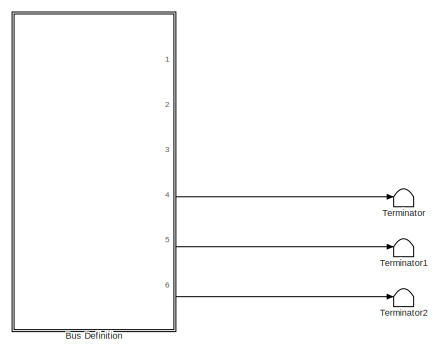
[diagram: root canvas - part 1/2, top left region]
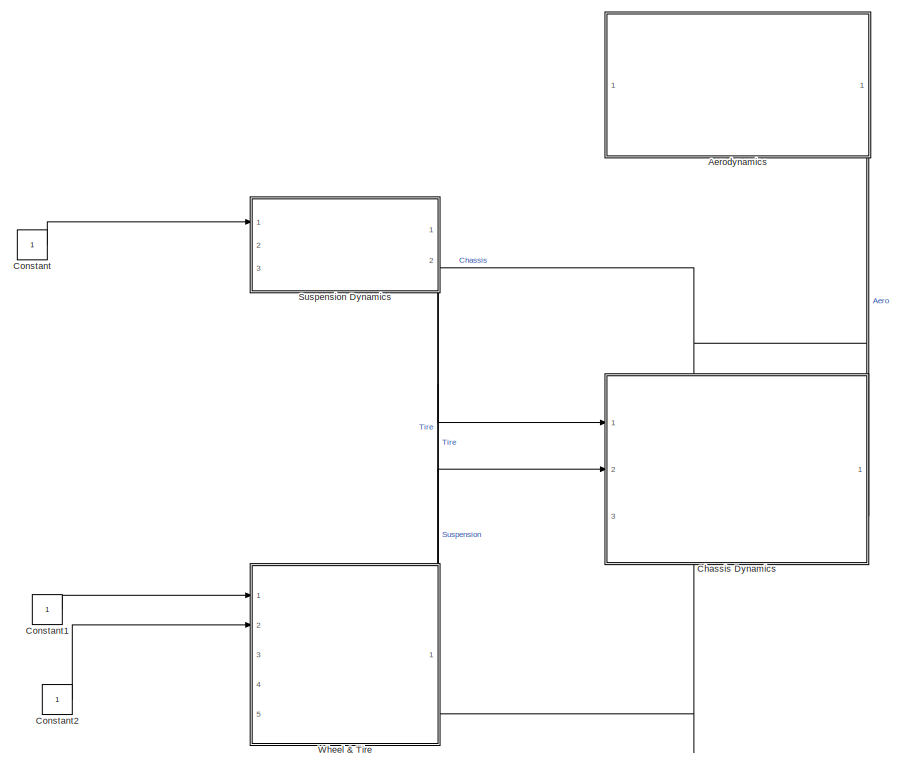
[diagram: root canvas - part 2/2, bottom right region]
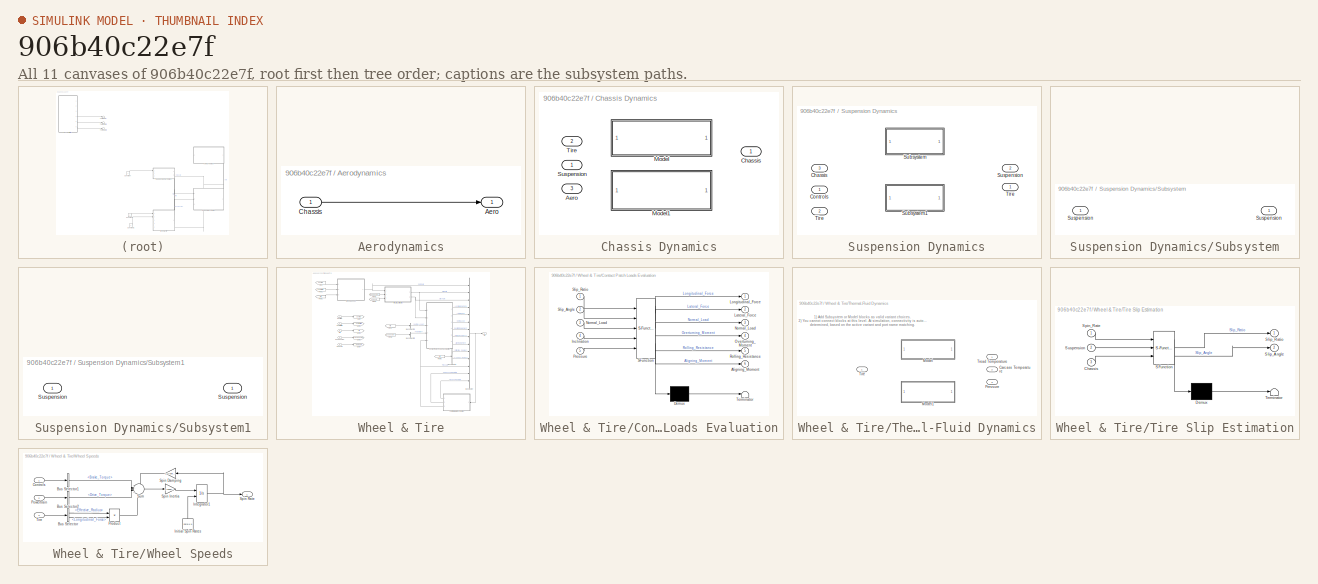
[diagram: thumbnail index - all 11 canvases of the model, root first then tree order]
MODEL slx_906b40c22e7f
KIND model
CONFIG AbsTol = auto
CONFIG EnableMultiTasking = off
CONFIG FixedStep = auto
CONFIG MaxStep = auto
CONFIG MinStep = auto
CONFIG RelTol = 1e-3
CONFIG SampleTimeConstraint = Unconstrained
CONFIG SolverName = VariableStepAuto
CONFIG StartTime = 0.0
CONFIG StopTime = 10.0
BLOCK [SubSystem] Aerodynamics
  NameLocation = top
  PortSchema = {"entries":[{"content":{"sides":[{"content":{"connectorIds":[]},"type":"ConnectorPlacement.EquallySpacedRectSide","uuid":"ed036519-b865-4931-9ce8-225bd8cb43a6"},{"content":{"connectorIds":[],"side":"RIGHT"},"type":"ConnectorPlacement.EquallySpacedRectSide","uuid":"9b23d089-d24c-4331-9743-5906988b211f"},{"content":{"connectorIds":[],"side":"TOP"},"type":"ConnectorPlacement.EquallySpacedRectSide","u...<+529ch>
  Ports = [1, 1]
  RequestExecContextInheritance = off
BLOCK [Outport] Aerodynamics/Aero
BLOCK [Inport] Aerodynamics/Chassis
BLOCK [ModelReference] Bus Definition
  ModelNameDialog = VehicleModelBusTest.slx
  ModelReferenceVersion = 1.33
  Ports = [0, 6]
BLOCK [SubSystem] Chassis Dynamics
  PortSchema = {"entries":[{"content":{"sides":[{"content":{"connectorIds":["In1","In2"]},"type":"ConnectorPlacement.EquallySpacedRectSide","uuid":"401103c9-df33-4d23-92c4-dccc68bb9aee"},{"content":{"connectorIds":[],"side":"RIGHT"},"type":"ConnectorPlacement.EquallySpacedRectSide","uuid":"29401883-02eb-405e-b55e-d775bdf22a7d"},{"content":{"connectorIds":["Out1","In3"],"side":"TOP"},"type":"ConnectorPlacement.Eq...<+396ch>
  Ports = [3, 1]
  RequestExecContextInheritance = off
  Variant = on
BLOCK [Inport] Chassis Dynamics/Aero
  Port = 3
BLOCK [Outport] Chassis Dynamics/Chassis
BLOCK [ModelReference] Chassis Dynamics/Model
  DisableCoverage = on
  Ports = []
  VariantControl = Variant
BLOCK [ModelReference] Chassis Dynamics/Model1
  Ports = []
  VariantControl = Variant1
BLOCK [Inport] Chassis Dynamics/Suspension
BLOCK [Inport] Chassis Dynamics/Tire
  Port = 2
BLOCK [Constant] Constant
BLOCK [Constant] Constant1
BLOCK [Constant] Constant2
BLOCK [SubSystem] Suspension Dynamics
  NameLocation = top
  PortSchema = {"entries":[{"content":{"sides":[{"content":{"connectorIds":["In1"]},"type":"ConnectorPlacement.EquallySpacedRectSide","uuid":"ac39668b-b0ed-403b-8381-303be083bc77"},{"content":{"connectorIds":["In3"],"side":"RIGHT"},"type":"ConnectorPlacement.EquallySpacedRectSide","uuid":"f6b1d0bd-c35b-44a1-b6f6-628e84c5d84e"},{"content":{"connectorIds":[],"side":"TOP"},"type":"ConnectorPlacement.EquallySpacedRe...<+546ch>
  Ports = [3, 2]
  RequestExecContextInheritance = off
  Variant = on
BLOCK [Inport] Suspension Dynamics/Chassis
  Port = 3
BLOCK [Inport] Suspension Dynamics/Controls
BLOCK [SubSystem] Suspension Dynamics/Subsystem
  Ports = [1, 1]
  RequestExecContextInheritance = off
  VariantControl = Choice_1
BLOCK [Inport] Suspension Dynamics/Subsystem/Suspension
BLOCK [Outport] Suspension Dynamics/Subsystem/Suspension 
BLOCK [SubSystem] Suspension Dynamics/Subsystem1
  Ports = [1, 1]
  RequestExecContextInheritance = off
  VariantControl = Choice_2
BLOCK [Inport] Suspension Dynamics/Subsystem1/Suspension
BLOCK [Outport] Suspension Dynamics/Subsystem1/Suspension 
BLOCK [Outport] Suspension Dynamics/Suspension 
  Port = 2
BLOCK [Inport] Suspension Dynamics/Tire
  Port = 2
BLOCK [Outport] Suspension Dynamics/Tire 
BLOCK [Terminator] Terminator
BLOCK [Terminator] Terminator1
BLOCK [Terminator] Terminator2
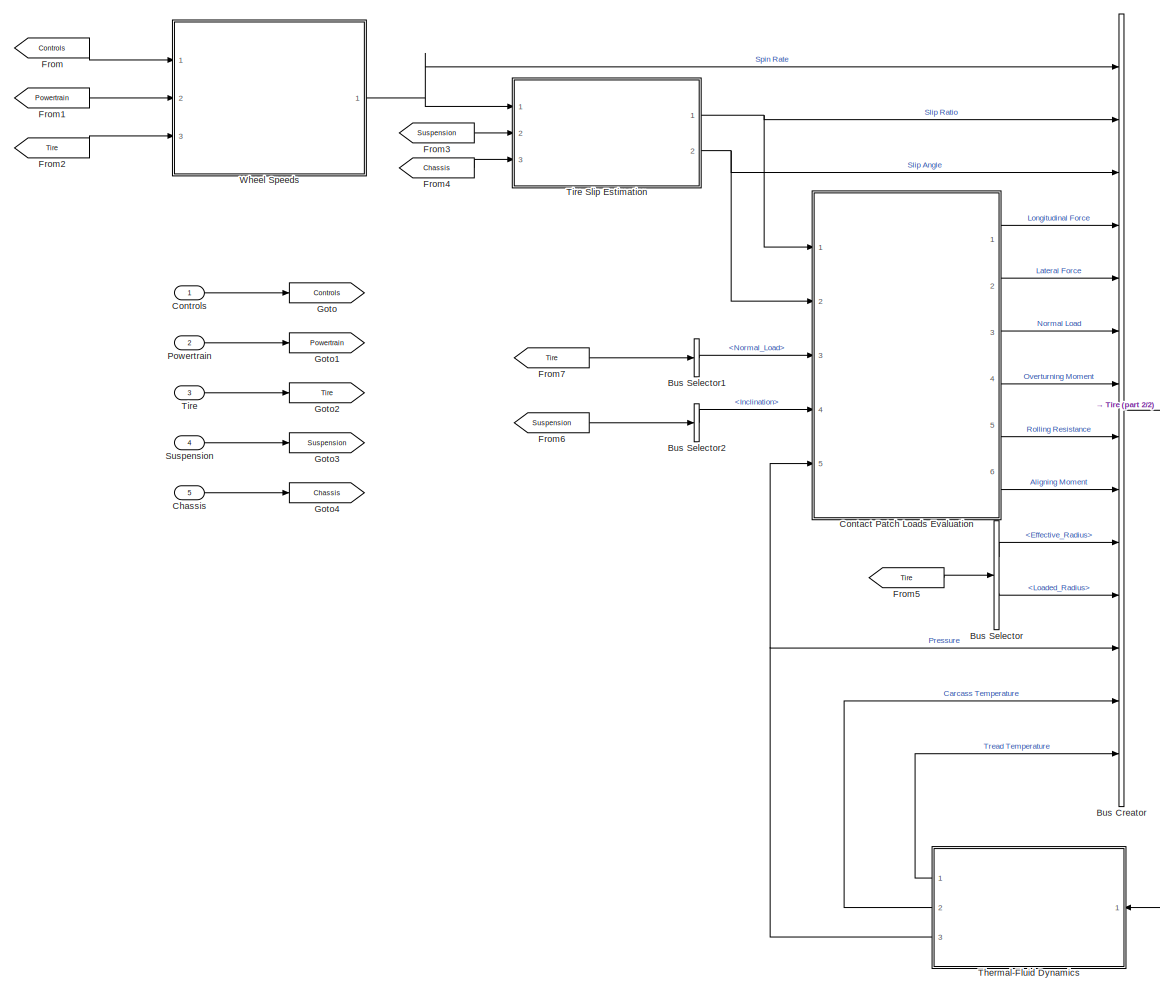
[diagram: Wheel & Tire - part 1/2, most of the canvas]
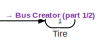
[diagram: Wheel & Tire - part 2/2, middle right region]
BLOCK [SubSystem] Wheel & Tire
  PortSchema = {"entries":[{"content":{"sides":[{"content":{"connectorIds":["In1","In2"]},"type":"ConnectorPlacement.EquallySpacedRectSide","uuid":"ac39668b-b0ed-403b-8381-303be083bc77"},{"content":{"connectorIds":["In5"],"side":"RIGHT"},"type":"ConnectorPlacement.EquallySpacedRectSide","uuid":"f6b1d0bd-c35b-44a1-b6f6-628e84c5d84e"},{"content":{"connectorIds":["In3","Out1","In4"],"side":"TOP"},"type":"ConnectorP...<+407ch>
  Ports = [5, 1]
  RequestExecContextInheritance = off
BLOCK [BusCreator] Wheel & Tire/Bus Creator
  DisplayOption = bar
  InheritFromInputs = on
  Inputs = 14
  Ports = [14, 1]
BLOCK [BusSelector] Wheel & Tire/Bus Selector
  OutputSignals = Effective_Radius,Loaded_Radius
  Ports = [1, 2]
BLOCK [BusSelector] Wheel & Tire/Bus Selector1
  OutputSignals = Normal_Load
  Ports = [1, 1]
BLOCK [BusSelector] Wheel & Tire/Bus Selector2
  OutputSignals = Inclination
  Ports = [1, 1]
BLOCK [Inport] Wheel & Tire/Chassis
  OutDataTypeStr = Bus: Chassis
  Port = 5
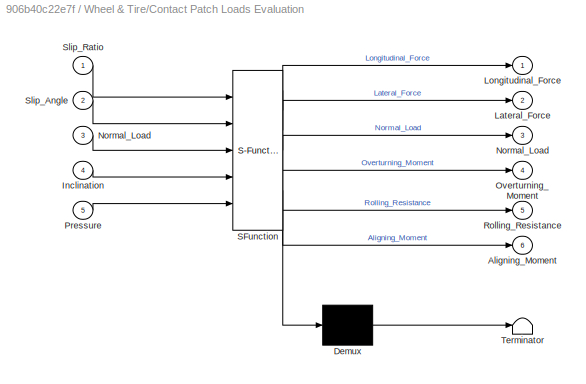
BLOCK [SubSystem] Wheel & Tire/Contact Patch Loads Evaluation
  ErrorFcn = Stateflow.Translate.translate
  PermitHierarchicalResolution = ExplicitOnly
  Ports = [5, 6]
  RequestExecContextInheritance = off
  SFBlockType = MATLAB Function
  TreatAsAtomicUnit = on
BLOCK [Demux] Wheel & Tire/Contact Patch Loads Evaluation/ Demux 
  Outputs = 1
  Ports = [1, 1]
BLOCK [S-Function] Wheel & Tire/Contact Patch Loads Evaluation/ SFunction 
  EnableBusSupport = off
  FunctionName = sf_sfun
  Parameters = Vehicle
  PortCounts = [5 7]
  Ports = [5, 7]
  SFcnIsStateOwnerBlock = off
  SFunctionDeploymentMode = off
  Tag = Stateflow S-Function 1
BLOCK [Terminator] Wheel & Tire/Contact Patch Loads Evaluation/ Terminator 
BLOCK [Outport] Wheel & Tire/Contact Patch Loads Evaluation/Aligning_Moment
  Port = 6
BLOCK [Inport] Wheel & Tire/Contact Patch Loads Evaluation/Inclination
  Port = 4
BLOCK [Outport] Wheel & Tire/Contact Patch Loads Evaluation/Lateral_Force
  Port = 2
BLOCK [Outport] Wheel & Tire/Contact Patch Loads Evaluation/Longitudinal_Force
BLOCK [Outport] Wheel & Tire/Contact Patch Loads Evaluation/Normal_Load
  Port = 3
BLOCK [Inport] Wheel & Tire/Contact Patch Loads Evaluation/Normal_Load 
  Port = 3
BLOCK [Outport] Wheel & Tire/Contact Patch Loads Evaluation/Overturning_Moment
  Port = 4
BLOCK [Inport] Wheel & Tire/Contact Patch Loads Evaluation/Pressure
  Port = 5
BLOCK [Outport] Wheel & Tire/Contact Patch Loads Evaluation/Rolling_Resistance
  Port = 5
BLOCK [Inport] Wheel & Tire/Contact Patch Loads Evaluation/Slip_Angle
  Port = 2
BLOCK [Inport] Wheel & Tire/Contact Patch Loads Evaluation/Slip_Ratio
BLOCK [Inport] Wheel & Tire/Controls
  OutDataTypeStr = Bus: Controls
BLOCK [From] Wheel & Tire/From
  GotoTag = Controls
BLOCK [From] Wheel & Tire/From1
  GotoTag = Powertrain
BLOCK [From] Wheel & Tire/From2
  GotoTag = Tire
BLOCK [From] Wheel & Tire/From3
  GotoTag = Suspension
BLOCK [From] Wheel & Tire/From4
  GotoTag = Chassis
BLOCK [From] Wheel & Tire/From5
  GotoTag = Tire
BLOCK [From] Wheel & Tire/From6
  GotoTag = Suspension
BLOCK [From] Wheel & Tire/From7
  GotoTag = Tire
BLOCK [Goto] Wheel & Tire/Goto
  GotoTag = Controls
BLOCK [Goto] Wheel & Tire/Goto1
  GotoTag = Powertrain
BLOCK [Goto] Wheel & Tire/Goto2
  GotoTag = Tire
BLOCK [Goto] Wheel & Tire/Goto3
  GotoTag = Suspension
BLOCK [Goto] Wheel & Tire/Goto4
  GotoTag = Chassis
BLOCK [Inport] Wheel & Tire/Powertrain
  OutDataTypeStr = Bus: Powertrain
  Port = 2
BLOCK [Inport] Wheel & Tire/Suspension
  OutDataTypeStr = Bus: Suspension
  Port = 4
BLOCK [SubSystem] Wheel & Tire/Thermal-Fluid Dynamics
  Ports = [1, 3]
  RequestExecContextInheritance = off
  Variant = on
BLOCK [Outport] Wheel & Tire/Thermal-Fluid Dynamics/Carcass Temperature
  Port = 2
BLOCK [ModelReference] Wheel & Tire/Thermal-Fluid Dynamics/Model
  DisableCoverage = on
  Ports = []
  VariantControl = Variant
BLOCK [ModelReference] Wheel & Tire/Thermal-Fluid Dynamics/Model1
  Ports = []
  VariantControl = Variant1
BLOCK [Outport] Wheel & Tire/Thermal-Fluid Dynamics/Pressure
  Port = 3
BLOCK [Inport] Wheel & Tire/Thermal-Fluid Dynamics/Tire
BLOCK [Outport] Wheel & Tire/Thermal-Fluid Dynamics/Tread Temperature
BLOCK [Inport] Wheel & Tire/Tire
  OutDataTypeStr = Bus: Tire
  Port = 3
BLOCK [Outport] Wheel & Tire/Tire 
  OutDataTypeStr = Bus: Tire
BLOCK [SubSystem] Wheel & Tire/Tire Slip Estimation
  ErrorFcn = Stateflow.Translate.translate
  PermitHierarchicalResolution = ExplicitOnly
  Ports = [3, 2]
  RequestExecContextInheritance = off
  SFBlockType = MATLAB Function
  TreatAsAtomicUnit = on
BLOCK [Demux] Wheel & Tire/Tire Slip Estimation/ Demux 
  Outputs = 1
  Ports = [1, 1]
BLOCK [S-Function] Wheel & Tire/Tire Slip Estimation/ SFunction 
  EnableBusSupport = off
  FunctionName = sf_sfun
  Parameters = Vehicle
  PortCounts = [3 3]
  Ports = [3, 3]
  SFcnIsStateOwnerBlock = off
  SFunctionDeploymentMode = off
  Tag = Stateflow S-Function 14
BLOCK [Terminator] Wheel & Tire/Tire Slip Estimation/ Terminator 
BLOCK [Inport] Wheel & Tire/Tire Slip Estimation/Chassis
  Port = 3
BLOCK [Outport] Wheel & Tire/Tire Slip Estimation/Slip_Angle
  Port = 2
BLOCK [Outport] Wheel & Tire/Tire Slip Estimation/Slip_Ratio
BLOCK [Inport] Wheel & Tire/Tire Slip Estimation/Spin_Rate
BLOCK [Inport] Wheel & Tire/Tire Slip Estimation/Suspension
  Port = 2
BLOCK [SubSystem] Wheel & Tire/Wheel Speeds
  Ports = [3, 1]
  RequestExecContextInheritance = off
BLOCK [BusSelector] Wheel & Tire/Wheel Speeds/Bus Selector
  OutputSignals = Effective_Radius,Longitudinal_Force
  Ports = [1, 2]
BLOCK [BusSelector] Wheel & Tire/Wheel Speeds/Bus Selector1
  OutputSignals = Brake_Torque
  Ports = [1, 1]
BLOCK [BusSelector] Wheel & Tire/Wheel Speeds/Bus Selector2
  OutputSignals = Drive_Torque
  Ports = [1, 1]
BLOCK [Inport] Wheel & Tire/Wheel Speeds/Controls
BLOCK [Constant] Wheel & Tire/Wheel Speeds/Initial Spin Rates
  NameLocation = right
  Value = zero(4,1)
BLOCK [Integrator] Wheel & Tire/Wheel Speeds/Integrator1
  InitialConditionSource = external
  NameLocation = top
  Ports = [2, 1]
BLOCK [Inport] Wheel & Tire/Wheel Speeds/Powertrain
  Port = 2
BLOCK [Product] Wheel & Tire/Wheel Speeds/Product
  Ports = [2, 1]
BLOCK [Gain] Wheel & Tire/Wheel Speeds/Spin Damping
  Gain = 1./Vehicle.Tire.Damping
  NameLocation = top
BLOCK [Gain] Wheel & Tire/Wheel Speeds/Spin Inertia
  Gain = 1./squeeze(Vehicle.Tire.Inertia(:,2,2))
BLOCK [Outport] Wheel & Tire/Wheel Speeds/Spin Rate
BLOCK [Sum] Wheel & Tire/Wheel Speeds/Sum
  Inputs = --||+-
  Ports = [4, 1]
BLOCK [Inport] Wheel & Tire/Wheel Speeds/Tire
  Port = 3
ANNOTATION Wheel & Tire/Thermal-Fluid Dynamics: 1) Add Subsystem or Model blocks as valid variant choices. 2) You cannot connect blocks at this level. At simulation, connectivity is automatically determined, based on the active variant and port name matching.
LINE Aerodynamics/Chassis:1 -> Aerodynamics/Aero:1
LINE Aerodynamics:1 -> Chassis Dynamics:3
LINE Bus Definition:4 -> Terminator:1
LINE Bus Definition:5 -> Terminator1:1
LINE Bus Definition:6 -> Terminator2:1
NET Chassis Dynamics:1 -> Aerodynamics:1, Suspension Dynamics:3, Wheel & Tire:5
LINE Constant1:1 -> Wheel & Tire:1
LINE Constant2:1 -> Wheel & Tire:2
LINE Constant:1 -> Suspension Dynamics:1
LINE Suspension Dynamics:1 -> Wheel & Tire:3
NET Suspension Dynamics:2 -> Chassis Dynamics:1, Wheel & Tire:4
NET Wheel & Tire/Bus Creator:1 -> Wheel & Tire/Thermal-Fluid Dynamics:1, Wheel & Tire/Tire :1
LINE Wheel & Tire/Bus Selector1:1 -> Wheel & Tire/Contact Patch Loads Evaluation:3
LINE Wheel & Tire/Bus Selector2:1 -> Wheel & Tire/Contact Patch Loads Evaluation:4
LINE Wheel & Tire/Bus Selector:1 -> Wheel & Tire/Bus Creator:10
LINE Wheel & Tire/Bus Selector:2 -> Wheel & Tire/Bus Creator:11
LINE Wheel & Tire/Chassis:1 -> Wheel & Tire/Goto4:1
LINE Wheel & Tire/Contact Patch Loads Evaluation:1 -> Wheel & Tire/Bus Creator:4
LINE Wheel & Tire/Contact Patch Loads Evaluation:2 -> Wheel & Tire/Bus Creator:5
LINE Wheel & Tire/Contact Patch Loads Evaluation:3 -> Wheel & Tire/Bus Creator:6
LINE Wheel & Tire/Contact Patch Loads Evaluation:4 -> Wheel & Tire/Bus Creator:7
LINE Wheel & Tire/Contact Patch Loads Evaluation:5 -> Wheel & Tire/Bus Creator:8
LINE Wheel & Tire/Contact Patch Loads Evaluation:6 -> Wheel & Tire/Bus Creator:9
LINE Wheel & Tire/Controls:1 -> Wheel & Tire/Goto:1
LINE Wheel & Tire/From1:1 -> Wheel & Tire/Wheel Speeds:2
LINE Wheel & Tire/From2:1 -> Wheel & Tire/Wheel Speeds:3
LINE Wheel & Tire/From3:1 -> Wheel & Tire/Tire Slip Estimation:2
LINE Wheel & Tire/From4:1 -> Wheel & Tire/Tire Slip Estimation:3
LINE Wheel & Tire/From5:1 -> Wheel & Tire/Bus Selector:1
LINE Wheel & Tire/From6:1 -> Wheel & Tire/Bus Selector2:1
LINE Wheel & Tire/From7:1 -> Wheel & Tire/Bus Selector1:1
LINE Wheel & Tire/From:1 -> Wheel & Tire/Wheel Speeds:1
LINE Wheel & Tire/Powertrain:1 -> Wheel & Tire/Goto1:1
LINE Wheel & Tire/Suspension:1 -> Wheel & Tire/Goto3:1
LINE Wheel & Tire/Thermal-Fluid Dynamics:1 -> Wheel & Tire/Bus Creator:14
LINE Wheel & Tire/Thermal-Fluid Dynamics:2 -> Wheel & Tire/Bus Creator:13
NET Wheel & Tire/Thermal-Fluid Dynamics:3 -> Wheel & Tire/Bus Creator:12, Wheel & Tire/Contact Patch Loads Evaluation:5
NET Wheel & Tire/Tire Slip Estimation:1 -> Wheel & Tire/Bus Creator:2, Wheel & Tire/Contact Patch Loads Evaluation:1
NET Wheel & Tire/Tire Slip Estimation:2 -> Wheel & Tire/Bus Creator:3, Wheel & Tire/Contact Patch Loads Evaluation:2
LINE Wheel & Tire/Tire:1 -> Wheel & Tire/Goto2:1
LINE Wheel & Tire/Wheel Speeds/Bus Selector1:1 -> Wheel & Tire/Wheel Speeds/Sum:2
LINE Wheel & Tire/Wheel Speeds/Bus Selector2:1 -> Wheel & Tire/Wheel Speeds/Sum:3
LINE Wheel & Tire/Wheel Speeds/Bus Selector:1 -> Wheel & Tire/Wheel Speeds/Product:1
LINE Wheel & Tire/Wheel Speeds/Bus Selector:2 -> Wheel & Tire/Wheel Speeds/Product:2
LINE Wheel & Tire/Wheel Speeds/Controls:1 -> Wheel & Tire/Wheel Speeds/Bus Selector1:1
LINE Wheel & Tire/Wheel Speeds/Initial Spin Rates:1 -> Wheel & Tire/Wheel Speeds/Integrator1:2
NET Wheel & Tire/Wheel Speeds/Integrator1:1 -> Wheel & Tire/Wheel Speeds/Spin Damping:1, Wheel & Tire/Wheel Speeds/Spin Rate:1
LINE Wheel & Tire/Wheel Speeds/Powertrain:1 -> Wheel & Tire/Wheel Speeds/Bus Selector2:1
LINE Wheel & Tire/Wheel Speeds/Product:1 -> Wheel & Tire/Wheel Speeds/Sum:4
LINE Wheel & Tire/Wheel Speeds/Spin Damping:1 -> Wheel & Tire/Wheel Speeds/Sum:1
LINE Wheel & Tire/Wheel Speeds/Spin Inertia:1 -> Wheel & Tire/Wheel Speeds/Integrator1:1
LINE Wheel & Tire/Wheel Speeds/Sum:1 -> Wheel & Tire/Wheel Speeds/Spin Inertia:1
LINE Wheel & Tire/Wheel Speeds/Tire:1 -> Wheel & Tire/Wheel Speeds/Bus Selector:1
NET Wheel & Tire/Wheel Speeds:1 -> Wheel & Tire/Bus Creator:1, Wheel & Tire/Tire Slip Estimation:1
NET Wheel & Tire:1 -> Chassis Dynamics:2, Suspension Dynamics:2
note: NET lines group one-source signal fan-out (src -> all destinations, sorted); 1:1 wires keep LINE
CHART Wheel & Tire/Contact Patch Loads Evaluation states=1 transitions=1
  STATE_LABEL 'eML_blk_kernel()'
  STATE_LABEL 'SCRIPT:\nfunction [Longitudinal_Force, Lateral_Force, Normal_Load, ...\n    Overturning_Moment, Rolling_Resistance, Aligning_Moment] = ...\n    ContactPatchLoads(Slip_Ratio, Slip_Angle, Normal_Load, Inclination, Pressure, Vehicle)\n\nfor i = 1:4\n   \nend\n'
CHART Wheel & Tire/Tire Slip Estimation states=1 transitions=1
  STATE_LABEL 'eML_blk_kernel()'
  STATE_LABEL 'SCRIPT:\nfunction [Slip_Ratio, Slip_Angle] = TireSlipEstimation(Spin_Rate, Suspension, Chassis, Vehicle)\n\nSlip_Angle = zeros(4,1);\nSlip_Angle(1) = Suspension.Steer(1) - atan2d( (Chassis.Lateral(2) + Vehicle.Chassis.a*Chassis.Yaw(2) ), ...\n    ( Chassis.Longitudinal(2) - (Suspension.Track(1)/2)*Chassis.Yaw(2) ) );\nSlip_Angle(2) = Suspension.Steer(2) - atan2d( (Chassis.Lateral(2) + Vehicle.Chassis.a*...<+1529ch>'
CHART  states=0 transitions=0
CHART  states=0 transitions=0
